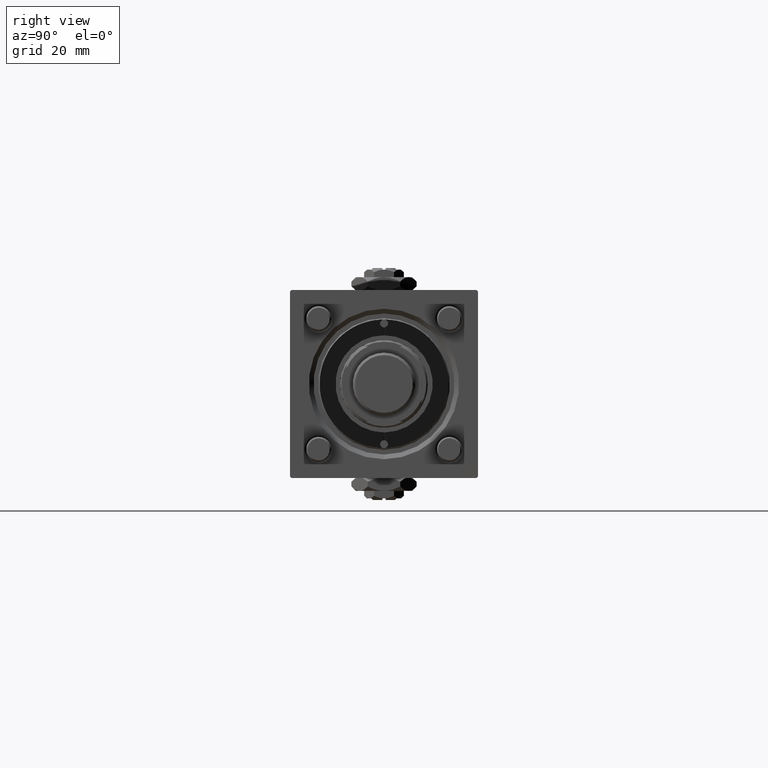
[diagram: clean part render]
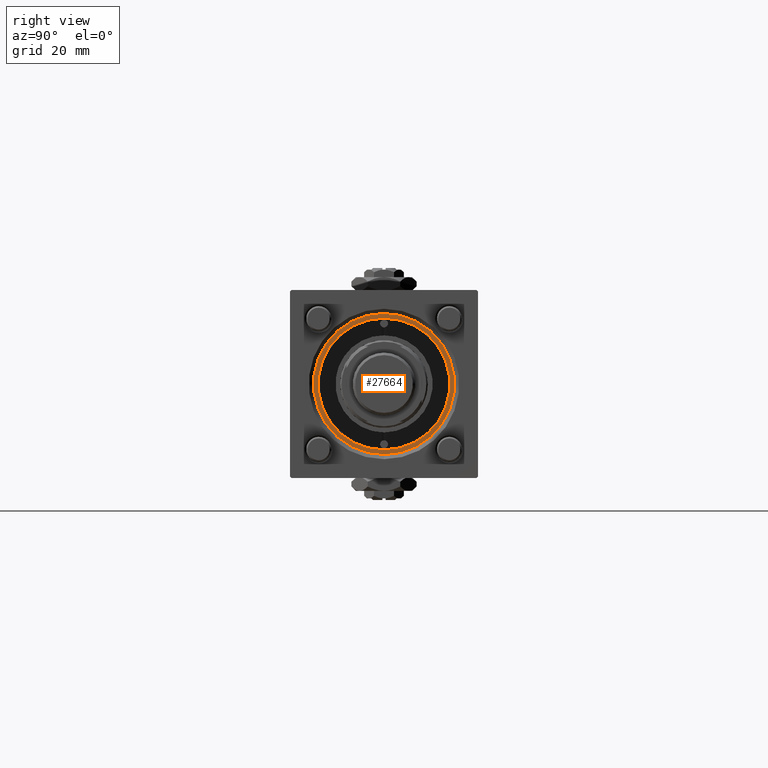
[diagram: same view with one face highlighted and labeled with its STEP entity id]
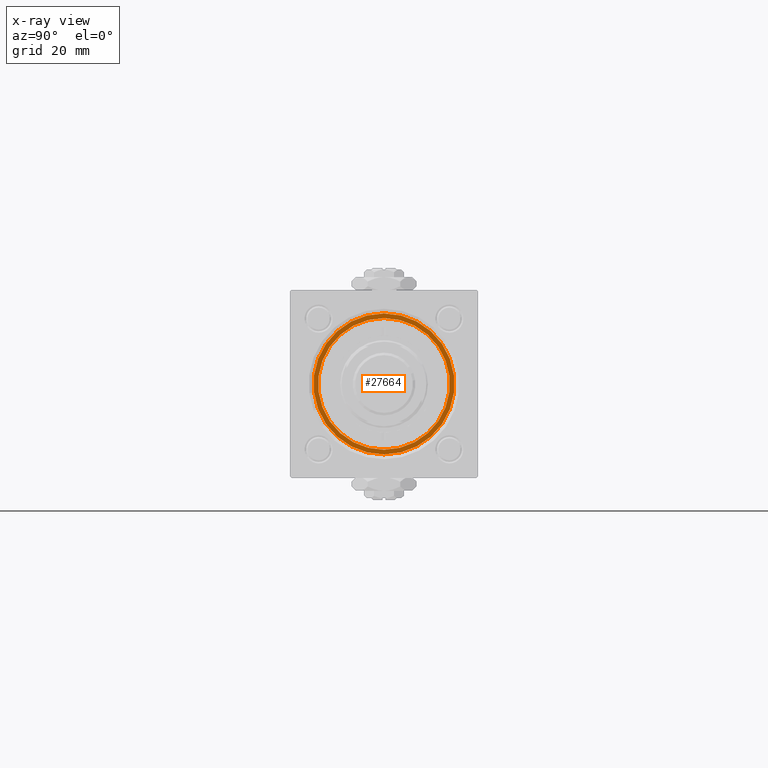
[diagram: x-ray of the same camera — body ghosted, the highlighted face saturated]
A machine part, right view. The second image highlights one B-rep face of the part: STEP entity #27664.
The next image is the same camera in x-ray: the body ghosted, the highlighted face saturated — about 0% of this face is hidden behind the body in this view.
In plain terms, the highlighted planar face has unit normal (1, 0, 0).
Its self-contained STEP definition (entity closure, byte-faithful):
#17 = DIRECTION ( 'NONE',  ( 1.000000000000000000, 0.000000000000000000, 0.000000000000000000 ) ) ;
#468 = EDGE_CURVE ( 'NONE', #15244, #8978, #15860, .T. ) ;
#539 = CARTESIAN_POINT ( 'NONE',  ( 0.000000000000000000, 0.000000000000000000, 28.69999999999999929 ) ) ;
#548 = AXIS2_PLACEMENT_3D ( 'NONE', #46334, #54787, #17 ) ;
#1258 = CARTESIAN_POINT ( 'NONE',  ( 0.000000000000000000, 0.000000000000000000, 28.69999999999999929 ) ) ;
#2358 = ORIENTED_EDGE ( 'NONE', *, *, #29670, .F. ) ;
#3486 = FACE_BOUND ( 'NONE', #17597, .T. ) ;
#3727 = ORIENTED_EDGE ( 'NONE', *, *, #6970, .F. ) ;
#4786 = CARTESIAN_POINT ( 'NONE',  ( 22.50000000000000355, 2.755455298081545172E-15, 28.69999999999999929 ) ) ;
#6318 = AXIS2_PLACEMENT_3D ( 'NONE', #1258, #29210, #56634 ) ;
#6970 = EDGE_CURVE ( 'NONE', #37092, #10324, #23568, .T. ) ;
#7986 = PLANE ( 'NONE',  #19475 ) ;
#8978 = VERTEX_POINT ( 'NONE', #26919 ) ;
#10324 = VERTEX_POINT ( 'NONE', #18129 ) ;
#10444 = DIRECTION ( 'NONE',  ( 1.000000000000000000, 0.000000000000000000, 0.000000000000000000 ) ) ;
#15244 = VERTEX_POINT ( 'NONE', #4786 ) ;
#15860 = CIRCLE ( 'NONE', #59058, 22.50000000000000355 ) ;
#15925 = CIRCLE ( 'NONE', #548, 22.50000000000000355 ) ;
#17597 = EDGE_LOOP ( 'NONE', ( #3727, #2358 ) ) ;
#17917 = DIRECTION ( 'NONE',  ( 0.000000000000000000, 0.000000000000000000, 1.000000000000000000 ) ) ;
#18129 = CARTESIAN_POINT ( 'NONE',  ( 21.00000000000000000, 2.571758278209441661E-15, 28.69999999999999929 ) ) ;
#18594 = CIRCLE ( 'NONE', #32047, 21.00000000000000000 ) ;
#18880 = DIRECTION ( 'NONE',  ( 0.000000000000000000, 0.000000000000000000, 1.000000000000000000 ) ) ;
#19475 = AXIS2_PLACEMENT_3D ( 'NONE', #45899, #17917, #45006 ) ;
#22393 = ORIENTED_EDGE ( 'NONE', *, *, #58560, .T. ) ;
#23568 = CIRCLE ( 'NONE', #6318, 21.00000000000000000 ) ;
#26919 = CARTESIAN_POINT ( 'NONE',  ( -22.50000000000000355, 0.000000000000000000, 28.69999999999999929 ) ) ;
#27664 = ADVANCED_FACE ( 'NONE', ( #3486, #36555 ), #7986, .T. ) ;
#29210 = DIRECTION ( 'NONE',  ( 0.000000000000000000, 0.000000000000000000, 1.000000000000000000 ) ) ;
#29670 = EDGE_CURVE ( 'NONE', #10324, #37092, #18594, .T. ) ;
#32047 = AXIS2_PLACEMENT_3D ( 'NONE', #37829, #51715, #10444 ) ;
#33043 = EDGE_LOOP ( 'NONE', ( #22393, #34931 ) ) ;
#34931 = ORIENTED_EDGE ( 'NONE', *, *, #468, .T. ) ;
#36555 = FACE_OUTER_BOUND ( 'NONE', #33043, .T. ) ;
#37092 = VERTEX_POINT ( 'NONE', #55648 ) ;
#37227 = DIRECTION ( 'NONE',  ( 1.000000000000000000, 0.000000000000000000, 0.000000000000000000 ) ) ;
#37829 = CARTESIAN_POINT ( 'NONE',  ( 0.000000000000000000, 0.000000000000000000, 28.69999999999999929 ) ) ;
#45006 = DIRECTION ( 'NONE',  ( 1.000000000000000000, 0.000000000000000000, -0.000000000000000000 ) ) ;
#45899 = CARTESIAN_POINT ( 'NONE',  ( 0.000000000000000000, 0.000000000000000000, 28.69999999999999929 ) ) ;
#46334 = CARTESIAN_POINT ( 'NONE',  ( 0.000000000000000000, 0.000000000000000000, 28.69999999999999929 ) ) ;
#51715 = DIRECTION ( 'NONE',  ( 0.000000000000000000, 0.000000000000000000, 1.000000000000000000 ) ) ;
#54787 = DIRECTION ( 'NONE',  ( 0.000000000000000000, 0.000000000000000000, 1.000000000000000000 ) ) ;
#55648 = CARTESIAN_POINT ( 'NONE',  ( -21.00000000000000000, 0.000000000000000000, 28.69999999999999929 ) ) ;
#56634 = DIRECTION ( 'NONE',  ( 1.000000000000000000, 0.000000000000000000, 0.000000000000000000 ) ) ;
#58560 = EDGE_CURVE ( 'NONE', #8978, #15244, #15925, .T. ) ;
#59058 = AXIS2_PLACEMENT_3D ( 'NONE', #539, #18880, #37227 ) ;